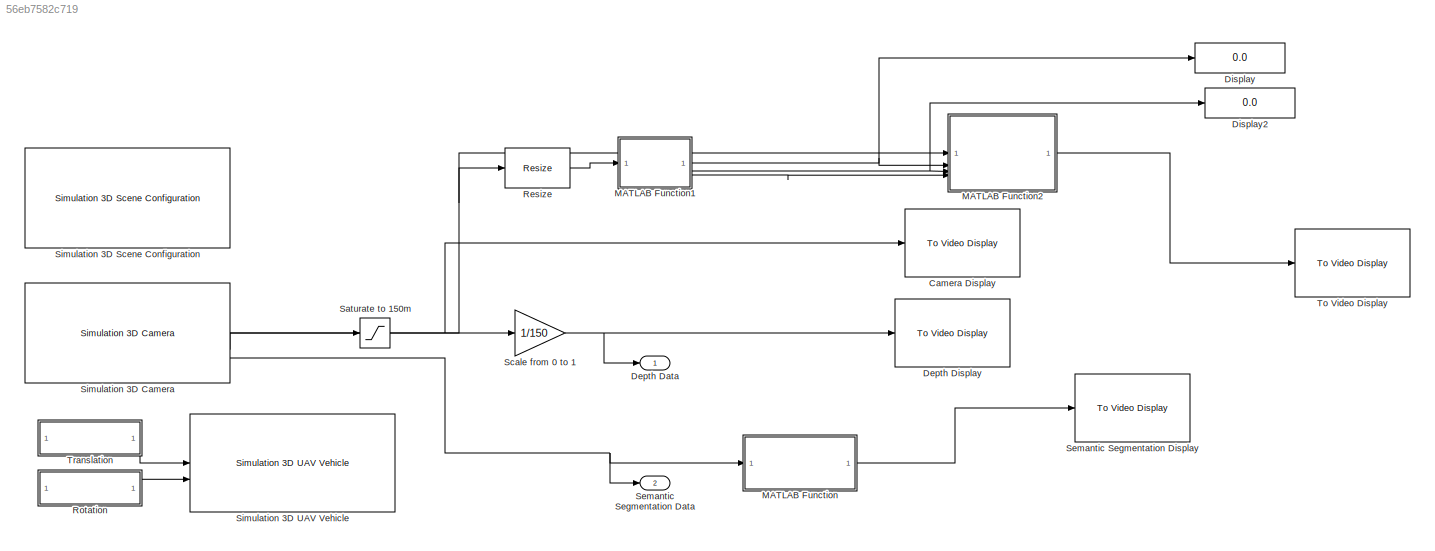
MODEL slx_56eb7582c719
KIND model
CONFIG AbsTol = auto
CONFIG EnableMultiTasking = off
CONFIG FixedStep = auto
CONFIG MaxStep = auto
CONFIG MinStep = auto
CONFIG RelTol = 1e-3
CONFIG SampleTimeConstraint = Unconstrained
CONFIG SolverName = VariableStepAuto
CONFIG StartTime = 0.0
CONFIG StopTime = 10.0
BLOCK [Reference] Camera Display  REF=visionsinks/To Video Display
  SourceBlock = visionsinks/To Video Display
  SourceType = To Video Display
BLOCK [Outport] Depth Data
BLOCK [Reference] Depth Display  REF=visionsinks/To Video Display
  SourceBlock = visionsinks/To Video Display
  SourceType = To Video Display
BLOCK [Display] Display
  Decimation = 1
  Format = long
BLOCK [Display] Display2
  Decimation = 1
  Format = long
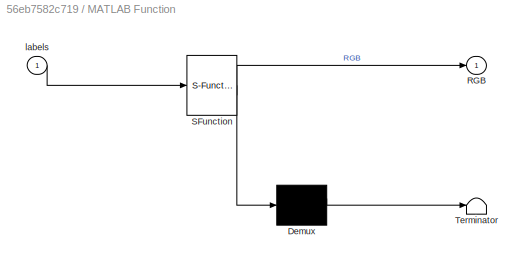
BLOCK [SubSystem] MATLAB Function
  ErrorFcn = Stateflow.Translate.translate
  PermitHierarchicalResolution = ExplicitOnly
  SFBlockType = MATLAB Function
  TreatAsAtomicUnit = on
BLOCK [Demux] MATLAB Function/ Demux 
  Outputs = 1
BLOCK [S-Function] MATLAB Function/ SFunction 
  EnableBusSupport = on
  FunctionName = sf_sfun
  PortCounts = [1 2]
  SFcnIsStateOwnerBlock = off
  SFunctionDeploymentMode = off
  Tag = Stateflow S-Function 2
BLOCK [Terminator] MATLAB Function/ Terminator 
BLOCK [Outport] MATLAB Function/RGB
BLOCK [Inport] MATLAB Function/labels
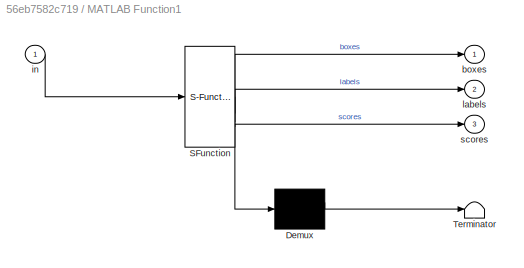
BLOCK [SubSystem] MATLAB Function1
  ErrorFcn = Stateflow.Translate.translate
  LibrarySourceBlock = simulink/User-Defined\nFunctions/MATLAB Function
  PermitHierarchicalResolution = ExplicitOnly
  SFBlockType = MATLAB Function
  TreatAsAtomicUnit = on
BLOCK [Demux] MATLAB Function1/ Demux 
  Outputs = 1
BLOCK [S-Function] MATLAB Function1/ SFunction 
  EnableBusSupport = on
  FunctionName = sf_sfun
  PortCounts = [1 4]
  SFcnIsStateOwnerBlock = off
  SFunctionDeploymentMode = off
  Tag = Stateflow S-Function 1
BLOCK [Terminator] MATLAB Function1/ Terminator 
BLOCK [Outport] MATLAB Function1/boxes
BLOCK [Inport] MATLAB Function1/in
BLOCK [Outport] MATLAB Function1/labels
  Port = 2
BLOCK [Outport] MATLAB Function1/scores
  Port = 3
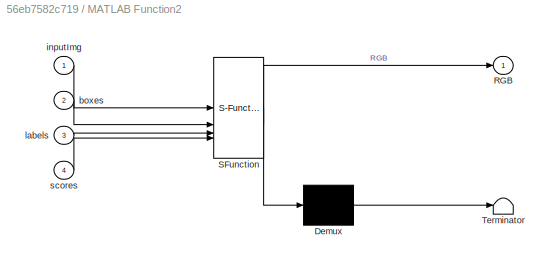
BLOCK [SubSystem] MATLAB Function2
  ErrorFcn = Stateflow.Translate.translate
  LibrarySourceBlock = simulink/User-Defined\nFunctions/MATLAB Function
  PermitHierarchicalResolution = ExplicitOnly
  SFBlockType = MATLAB Function
  TreatAsAtomicUnit = on
BLOCK [Demux] MATLAB Function2/ Demux 
  Outputs = 1
BLOCK [S-Function] MATLAB Function2/ SFunction 
  EnableBusSupport = on
  FunctionName = sf_sfun
  PortCounts = [4 2]
  SFcnIsStateOwnerBlock = off
  SFunctionDeploymentMode = off
  Tag = Stateflow S-Function 3
BLOCK [Terminator] MATLAB Function2/ Terminator 
BLOCK [Outport] MATLAB Function2/RGB
BLOCK [Inport] MATLAB Function2/boxes
  Port = 2
BLOCK [Inport] MATLAB Function2/inputImg
BLOCK [Inport] MATLAB Function2/labels
  Port = 3
BLOCK [Inport] MATLAB Function2/scores
  Port = 4
BLOCK [Reference] Resize  REF=visiongeotforms/Resize
  SourceBlock = visiongeotforms/Resize
  SourceType = Resize
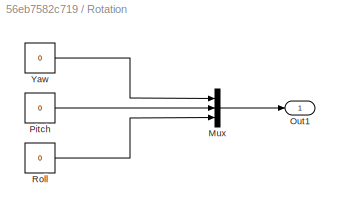
BLOCK [SubSystem] Rotation
BLOCK [Mux] Rotation/Mux
  DisplayOption = bar
  Inputs = 3
BLOCK [Outport] Rotation/Out1
BLOCK [Constant] Rotation/Pitch
  Value = 0
BLOCK [Constant] Rotation/Roll
  Value = 0
BLOCK [Constant] Rotation/Yaw
  Value = 0
BLOCK [Saturate] Saturate to 150m
  LowerLimit = 0
  UpperLimit = 150
BLOCK [Gain] Scale from 0 to 1
  Gain = 1/150
BLOCK [Outport] Semantic Segmentation Data
  Port = 2
BLOCK [Reference] Semantic Segmentation Display  REF=visionsinks/To Video Display
  SourceBlock = visionsinks/To Video Display
  SourceType = To Video Display
BLOCK [Reference] Simulation 3D Camera  REF=sim3dcameralib/Simulation 3D Camera
  Priority = 1
  SourceBlock = sim3dcameralib/Simulation 3D Camera
  SourceType = Simulation 3D Camera
BLOCK [Reference] Simulation 3D Scene Configuration  REF=sim3dlib/Simulation 3D Scene Configuration
  Priority = 0
  SourceBlock = sim3dlib/Simulation 3D Scene Configuration
  SourceType = Simulation 3D Scene Configuration
BLOCK [Reference] Simulation 3D UAV Vehicle  REF=uavsim3dlib/Simulation 3D UAV Vehicle
  Priority = -1
  SourceBlock = uavsim3dlib/Simulation 3D UAV Vehicle
  SourceType = Simulation 3D UAV Vehicle
BLOCK [Reference] To Video Display  REF=visionsinks/To Video Display
  SourceBlock = visionsinks/To Video Display
  SourceType = To Video Display
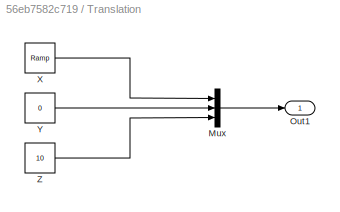
BLOCK [SubSystem] Translation
BLOCK [Mux] Translation/Mux
  DisplayOption = bar
  Inputs = 3
BLOCK [Outport] Translation/Out1
BLOCK [Reference] Translation/X  REF=simulink/Sources/Ramp
  SourceBlock = simulink/Sources/Ramp
  SourceType = Ramp
BLOCK [Constant] Translation/Y
  Value = 0
BLOCK [Constant] Translation/Z
  Value = 10
NET MATLAB Function1:1 -> Display:1, MATLAB Function2:2
NET MATLAB Function1:2 -> Display2:1, MATLAB Function2:3
LINE MATLAB Function1:3 -> MATLAB Function2:4
LINE MATLAB Function2:1 -> To Video Display:1
LINE MATLAB Function:1 -> Semantic Segmentation Display:1
LINE Resize:1 -> MATLAB Function1:1
LINE Rotation/Mux:1 -> Rotation/Out1:1
LINE Rotation/Pitch:1 -> Rotation/Mux:2
LINE Rotation/Roll:1 -> Rotation/Mux:3
LINE Rotation/Yaw:1 -> Rotation/Mux:1
LINE Rotation:1 -> Simulation 3D UAV Vehicle:2
LINE Saturate to 150m:1 -> Scale from 0 to 1:1
NET Scale from 0 to 1:1 -> Depth Data:1, Depth Display:1
NET Simulation 3D Camera:1 -> Camera Display:1, MATLAB Function2:1, Resize:1
LINE Simulation 3D Camera:2 -> Saturate to 150m:1
NET Simulation 3D Camera:3 -> MATLAB Function:1, Semantic Segmentation Data:1
LINE Translation/Mux:1 -> Translation/Out1:1
LINE Translation/X:1 -> Translation/Mux:1
LINE Translation/Y:1 -> Translation/Mux:2
LINE Translation/Z:1 -> Translation/Mux:3
LINE Translation:1 -> Simulation 3D UAV Vehicle:1
note: NET lines group one-source signal fan-out (src -> all destinations, sorted); 1:1 wires keep LINE
CHART MATLAB Function1 states=1 transitions=1
  STATE_LABEL 'eML_blk_kernel()'
  STATE_LABEL "SCRIPT:\nfunction [boxes,labels,scores] = tflite_predict(in)\npersistent net;\nif isempty(net)\n    net = loadTFLiteModel('lite-model_ssd_mobilenet_v1_1_metadata_2.tflite');\nend\n net.NumThreads=8;\n[boxes, labels, scores, ~] = predict(net, in, 'EnableINT8InferenceOnWindows', true);\n\nend\n\n\n\n\n\n\n"
CHART MATLAB Function states=1 transitions=1
  STATE_LABEL 'eML_blk_kernel()'
  STATE_LABEL "SCRIPT:\nfunction RGB = uavlabel2rgb(labels)\n% Convert semantic segmentation map captured during 3D simulation to RGB\n% color image.\n\n% Declare label2rgb function.\ncoder.extrinsic('label2rgb');\n\n% Preallocate memory for RGB matrix.\nRGB = coder.nullcopy(zeros(size(labels,1),size(labels,2),3,class(labels)));\n\n% Define colormap using 3D simulation label IDs.\ncmap = sim3dColormap;\n\n% Convert labels to ...<+47ch>"
CHART MATLAB Function2 states=1 transitions=1
  STATE_LABEL 'eML_blk_kernel()'
  STATE_LABEL 'SCRIPT:\nfunction RGB = postProcess(inputImg, boxes, labels, scores)\n    labelsFile = readtxtFile(); % Remove unnecessary cell initialization\n    \n    ymin = boxes(:, 1) * size(inputImg, 1);\n    xmin = boxes(:, 2) * size(inputImg, 2);\n    ymax = boxes(:, 3) * size(inputImg, 1);\n    xmax = boxes(:, 4) * size(inputImg, 2);\n    \n    width = xmax - xmin;\n    height = ymax - ymin;\n    \n    numBoxes = si...<+1231ch>'
CHART  states=0 transitions=0
CHART  states=0 transitions=0
CHART  states=0 transitions=0
